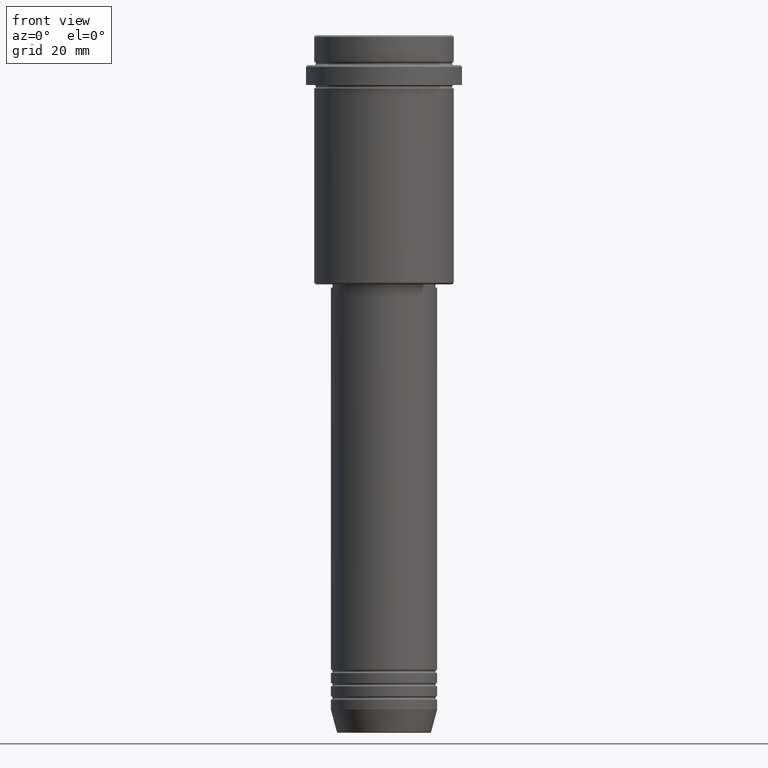
[diagram: clean part render]
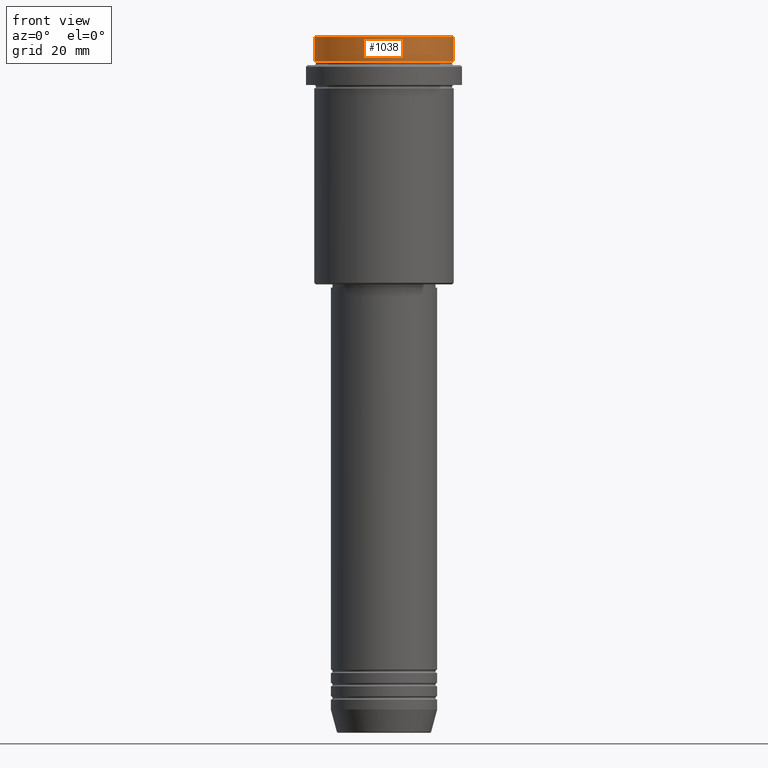
[diagram: same view with one face highlighted and labeled with its STEP entity id]
A machine part, front view. The second image highlights one B-rep face of the part: STEP entity #1038.
In plain terms, the highlighted cylindrical surface (partial cylindrical patch) has radius 21 mm, axis along (-0, -0, 1).
Its self-contained STEP definition (entity closure, byte-faithful):
#17 = EDGE_CURVE ( 'NONE', #621, #178, #1073, .T. ) ;
#24 = CYLINDRICAL_SURFACE ( 'NONE', #536, 21.00000000000000000 ) ;
#85 = CARTESIAN_POINT ( 'NONE',  ( -21.00000000000000000, 2.571758278209441661E-15, 0.000000000000000000 ) ) ;
#116 = ORIENTED_EDGE ( 'NONE', *, *, #1197, .T. ) ;
#178 = VERTEX_POINT ( 'NONE', #493 ) ;
#187 = DIRECTION ( 'NONE',  ( 1.000000000000000000, 0.000000000000000000, 0.000000000000000000 ) ) ;
#232 = DIRECTION ( 'NONE',  ( 0.000000000000000000, 0.000000000000000000, -1.000000000000000000 ) ) ;
#238 = EDGE_CURVE ( 'NONE', #621, #593, #287, .T. ) ;
#278 = ORIENTED_EDGE ( 'NONE', *, *, #1126, .T. ) ;
#287 = CIRCLE ( 'NONE', #1080, 21.00000000000000000 ) ;
#328 = DIRECTION ( 'NONE',  ( -0.000000000000000000, -0.000000000000000000, 1.000000000000000000 ) ) ;
#450 = VECTOR ( 'NONE', #1118, 1000.000000000000000 ) ;
#453 = ORIENTED_EDGE ( 'NONE', *, *, #238, .T. ) ;
#471 = CARTESIAN_POINT ( 'NONE',  ( 21.00000000000000000, 0.000000000000000000, -7.999999999999998224 ) ) ;
#493 = CARTESIAN_POINT ( 'NONE',  ( -21.00000000000000000, 2.571758278209441661E-15, -0.5000000000000108802 ) ) ;
#536 = AXIS2_PLACEMENT_3D ( 'NONE', #777, #683, #570 ) ;
#559 = LINE ( 'NONE', #907, #450 ) ;
#570 = DIRECTION ( 'NONE',  ( 1.000000000000000000, 0.000000000000000000, 0.000000000000000000 ) ) ;
#593 = VERTEX_POINT ( 'NONE', #471 ) ;
#621 = VERTEX_POINT ( 'NONE', #1122 ) ;
#664 = DIRECTION ( 'NONE',  ( 1.000000000000000000, 0.000000000000000000, 0.000000000000000000 ) ) ;
#683 = DIRECTION ( 'NONE',  ( -0.000000000000000000, -0.000000000000000000, 1.000000000000000000 ) ) ;
#713 = CARTESIAN_POINT ( 'NONE',  ( 21.00000000000000000, 0.000000000000000000, -0.5000000000000108802 ) ) ;
#730 = ORIENTED_EDGE ( 'NONE', *, *, #17, .F. ) ;
#777 = CARTESIAN_POINT ( 'NONE',  ( 0.000000000000000000, 0.000000000000000000, 0.000000000000000000 ) ) ;
#790 = AXIS2_PLACEMENT_3D ( 'NONE', #980, #232, #664 ) ;
#850 = DIRECTION ( 'NONE',  ( -0.000000000000000000, -0.000000000000000000, 1.000000000000000000 ) ) ;
#881 = CIRCLE ( 'NONE', #790, 21.00000000000000000 ) ;
#907 = CARTESIAN_POINT ( 'NONE',  ( 21.00000000000000000, 0.000000000000000000, 0.000000000000000000 ) ) ;
#980 = CARTESIAN_POINT ( 'NONE',  ( 0.000000000000000000, 0.000000000000000000, -0.5000000000000108802 ) ) ;
#1038 = ADVANCED_FACE ( 'NONE', ( #1227 ), #24, .T. ) ;
#1073 = LINE ( 'NONE', #85, #1261 ) ;
#1080 = AXIS2_PLACEMENT_3D ( 'NONE', #1385, #328, #187 ) ;
#1118 = DIRECTION ( 'NONE',  ( -0.000000000000000000, -0.000000000000000000, 1.000000000000000000 ) ) ;
#1122 = CARTESIAN_POINT ( 'NONE',  ( -21.00000000000000000, 2.571758278209441661E-15, -7.999999999999998224 ) ) ;
#1126 = EDGE_CURVE ( 'NONE', #593, #1271, #559, .T. ) ;
#1197 = EDGE_CURVE ( 'NONE', #1271, #178, #881, .T. ) ;
#1227 = FACE_OUTER_BOUND ( 'NONE', #1258, .T. ) ;
#1258 = EDGE_LOOP ( 'NONE', ( #730, #453, #278, #116 ) ) ;
#1261 = VECTOR ( 'NONE', #850, 1000.000000000000000 ) ;
#1271 = VERTEX_POINT ( 'NONE', #713 ) ;
#1385 = CARTESIAN_POINT ( 'NONE',  ( 0.000000000000000000, 0.000000000000000000, -7.999999999999998224 ) ) ;